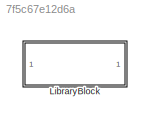
MODEL slx_7f5c67e12d6a
KIND library
CONFIG AbsTol = auto
CONFIG FixedStep = auto
CONFIG MaxStep = auto
CONFIG MinStep = auto
CONFIG RelTol = 1e-3
CONFIG SampleTimeConstraint = Unconstrained
CONFIG Solver = VariableStepAuto
CONFIG SolverMode = Auto
CONFIG SolverName = VariableStepAuto
CONFIG StartTime = 0.0
CONFIG StopTime = 10.0
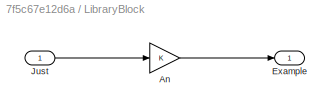
BLOCK [SubSystem] LibraryBlock
  Ports = [1, 1]
  RequestExecContextInheritance = off
  Variant = off
BLOCK [Gain] LibraryBlock/An
  OutDataTypeStr = Inherit: Inherit via internal rule
  ParamDataTypeStr = Inherit: Inherit via internal rule
  SaturateOnIntegerOverflow = off
BLOCK [Outport] LibraryBlock/Example
  IconDisplay = Port number
BLOCK [Inport] LibraryBlock/Just
  IconDisplay = Port number
LINE LibraryBlock/An:1 -> LibraryBlock/Example:1
LINE LibraryBlock/Just:1 -> LibraryBlock/An:1
